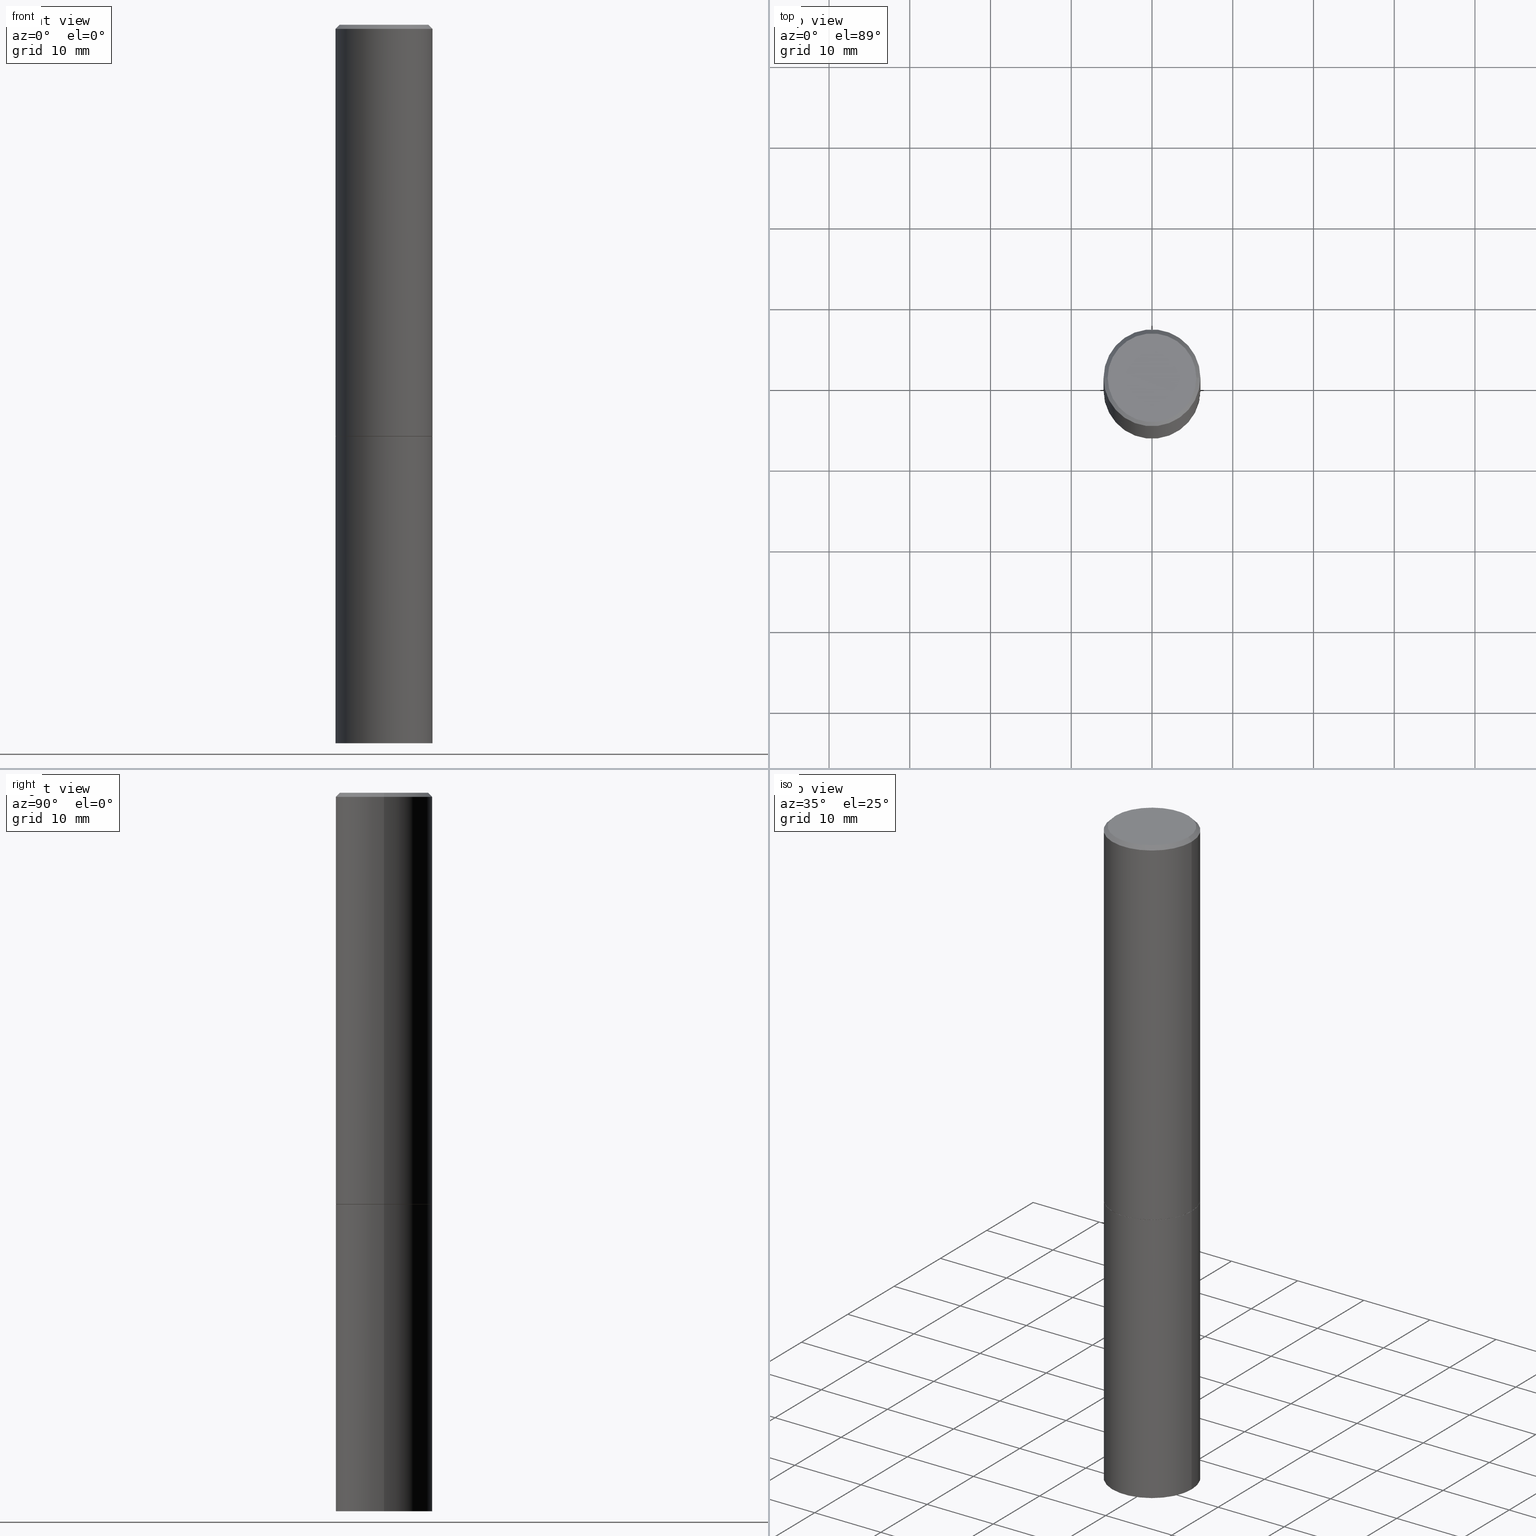
[diagram: canonical four-view strip — front | top / right | iso, engineering-drawing reading convention]
A machine part, canonical four-view strip (front | top / right | iso — engineering-drawing reading convention). The complete STEP part file that produces these views, byte-faithful:
ISO-10303-21;
HEADER;
FILE_DESCRIPTION (( 'STEP AP203' ),
    '1' );
FILE_NAME ('83111.STEP',
    '2024-03-01T00:17:55',
    ( '' ),
    ( '' ),
    'SwSTEP 2.0',
    'SolidWorks 2023',
    '' );
FILE_SCHEMA (( 'CONFIG_CONTROL_DESIGN' ));
ENDSEC;

DATA;
#1 = ORIENTED_EDGE ( 'NONE', *, *, #260, .F. ) ;
#2 = DATE_AND_TIME ( #257, #85 ) ;
#3 = VERTEX_POINT ( 'NONE', #239 ) ;
#4 = AXIS2_PLACEMENT_3D ( 'NONE', #35, #15, #122 ) ;
#5 = APPROVAL_PERSON_ORGANIZATION ( #126, #93, #319 ) ;
#6 = APPROVAL_STATUS ( 'not_yet_approved' ) ;
#7 = ORIENTED_EDGE ( 'NONE', *, *, #244, .F. ) ;
#8 = ORIENTED_EDGE ( 'NONE', *, *, #254, .F. ) ;
#9 = ADVANCED_FACE ( 'NONE', ( #265 ), #326, .F. ) ;
#10 = EDGE_LOOP ( 'NONE', ( #256, #140 ) ) ;
#11 = AXIS2_PLACEMENT_3D ( 'NONE', #24, #354, #187 ) ;
#12 = LOCAL_TIME ( 19, 17, 55.00000000000000000, #121 ) ;
#13 = FACE_OUTER_BOUND ( 'NONE', #191, .T. ) ;
#14 = ORIENTED_EDGE ( 'NONE', *, *, #254, .T. ) ;
#15 = DIRECTION ( 'NONE',  ( -2.445468806185136597E-29, 3.491481338843145583E-15, 1.000000000000000000 ) ) ;
#16 = CALENDAR_DATE ( 2024, 29, 2 ) ;
#17 = AXIS2_PLACEMENT_3D ( 'NONE', #76, #47, #213 ) ;
#18 = CARTESIAN_POINT ( 'NONE',  ( -0.2362000000000000210, -1.859965246918283512E-15, -2.006799999999999695 ) ) ;
#19 = DIRECTION ( 'NONE',  ( 1.000000000000000000, -6.982962677686267499E-15, 4.876217060660161841E-29 ) ) ;
#20 = APPROVAL ( #251, 'UNSPECIFIED' ) ;
#21 = CARTESIAN_POINT ( 'NONE',  ( 0.2161999999999997257, -1.586759460484350016E-15, 4.268512490111238857E-18 ) ) ;
#22 = VECTOR ( 'NONE', #243, 39.37007874015748854 ) ;
#23 = DIRECTION ( 'NONE',  ( 1.000000000000000000, -6.982962677686269077E-15, 0.000000000000000000 ) ) ;
#24 = CARTESIAN_POINT ( 'NONE',  ( 4.910012269058516525E-29, -7.010196232129267410E-15, -2.007800000000000029 ) ) ;
#25 = CARTESIAN_POINT ( 'NONE',  ( 0.000000000000000000, 0.000000000000000000, 0.000000000000000000 ) ) ;
#26 = VERTEX_POINT ( 'NONE', #94 ) ;
#27 = DATE_TIME_ROLE ( 'creation_date' ) ;
#28 = EDGE_LOOP ( 'NONE', ( #56, #83 ) ) ;
#29 = EDGE_CURVE ( 'NONE', #26, #112, #210, .T. ) ;
#30 = APPLICATION_PROTOCOL_DEFINITION ( 'international standard', 'config_control_design', 1994, #357 ) ;
#31 = ORIENTED_EDGE ( 'NONE', *, *, #61, .T. ) ;
#32 = DIMENSIONAL_EXPONENTS ( 1.000000000000000000, 0.000000000000000000, 0.000000000000000000, 0.000000000000000000, 0.000000000000000000, 0.000000000000000000, 0.000000000000000000 ) ;
#33 = CALENDAR_DATE ( 2024, 29, 2 ) ;
#34 = ADVANCED_FACE ( 'NONE', ( #90 ), #39, .T. ) ;
#35 = CARTESIAN_POINT ( 'NONE',  ( 4.910012269058516525E-29, -7.010196232129267410E-15, -2.007800000000000029 ) ) ;
#36 = DIRECTION ( 'NONE',  ( -1.000000000000000000, 6.982962677686266711E-15, 0.000000000000000000 ) ) ;
#37 = MANIFOLD_SOLID_BREP ( 'Body-Move/Copy2[2]', #147 ) ;
#38 = CARTESIAN_POINT ( 'NONE',  ( 4.890937612370280165E-31, -6.982962677686301470E-17, -0.02000000000000003164 ) ) ;
#39 = CONICAL_SURFACE ( 'NONE', #248, 0.2361999999999997157, 0.7853981633974472798 ) ;
#40 = CIRCLE ( 'NONE', #283, 0.2361999999999997157 ) ;
#41 = DIRECTION ( 'NONE',  ( -2.445468806185136877E-29, 3.491481338843145188E-15, 1.000000000000000000 ) ) ;
#42 = PRODUCT_RELATED_PRODUCT_CATEGORY ( 'detail', '', ( #222 ) ) ;
#43 = DIRECTION ( 'NONE',  ( 1.000000000000000000, -6.982962677686264344E-15, 0.000000000000000000 ) ) ;
#44 = CARTESIAN_POINT ( 'NONE',  ( -1.043851414335219820E-46, 1.490343170380447200E-32, 4.268512490100411279E-18 ) ) ;
#45 = VECTOR ( 'NONE', #273, 39.37007874015748143 ) ;
#46 = DIRECTION ( 'NONE',  ( 1.000000000000000000, -6.982962677686266711E-15, 4.876176775795936353E-29 ) ) ;
#47 = DIRECTION ( 'NONE',  ( -2.445468806185136597E-29, 3.491481338843145583E-15, 1.000000000000000000 ) ) ;
#48 = CARTESIAN_POINT ( 'NONE',  ( 0.2361999999999999933, -1.649375784469496131E-15, 1.151752954443000088E-29 ) ) ;
#49 = VECTOR ( 'NONE', #103, 39.37007874015748143 ) ;
#50 = CARTESIAN_POINT ( 'NONE',  ( 4.907566800252331482E-29, -7.006704750790423614E-15, -2.006799999999999695 ) ) ;
#51 = FACE_OUTER_BOUND ( 'NONE', #10, .T. ) ;
#52 = EDGE_LOOP ( 'NONE', ( #290, #143 ) ) ;
#53 = DATE_AND_TIME ( #59, #231 ) ;
#54 = CYLINDRICAL_SURFACE ( 'NONE', #96, 0.2361999999999998545 ) ;
#55 = AXIS2_PLACEMENT_3D ( 'NONE', #330, #215, #75 ) ;
#56 = ORIENTED_EDGE ( 'NONE', *, *, #123, .F. ) ;
#57 = ADVANCED_FACE ( 'NONE', ( #268 ), #351, .T. ) ;
#58 = PERSON_AND_ORGANIZATION ( #155, #195 ) ;
#59 = CALENDAR_DATE ( 2024, 29, 2 ) ;
#60 = ORIENTED_EDGE ( 'NONE', *, *, #302, .F. ) ;
#61 = EDGE_CURVE ( 'NONE', #262, #281, #176, .T. ) ;
#62 = CARTESIAN_POINT ( 'NONE',  ( 0.2361999999999997157, -1.690279253850496996E-15, -0.02000000000000003164 ) ) ;
#63 =( GEOMETRIC_REPRESENTATION_CONTEXT ( 3 ) GLOBAL_UNCERTAINTY_ASSIGNED_CONTEXT ( ( #106 ) ) GLOBAL_UNIT_ASSIGNED_CONTEXT ( ( #221, #193, #164 ) ) REPRESENTATION_CONTEXT ( 'NONE', 'WORKASPACE' ) );
#64 = CARTESIAN_POINT ( 'NONE',  ( 4.890937612370280165E-31, -6.982962677686301470E-17, -0.02000000000000003164 ) ) ;
#65 = FACE_OUTER_BOUND ( 'NONE', #309, .T. ) ;
#66 = EDGE_LOOP ( 'NONE', ( #229, #31, #137, #60 ) ) ;
#67 = CIRCLE ( 'NONE', #275, 0.2161999999999997257 ) ;
#68 = AXIS2_PLACEMENT_3D ( 'NONE', #329, #247, #46 ) ;
#69 = VERTEX_POINT ( 'NONE', #62 ) ;
#70 = DIRECTION ( 'NONE',  ( -2.445468806185136597E-29, 3.491481338843145583E-15, 1.000000000000000000 ) ) ;
#71 = DATE_AND_TIME ( #16, #253 ) ;
#72 = EDGE_CURVE ( 'NONE', #3, #232, #67, .T. ) ;
#73 = LINE ( 'NONE', #298, #49 ) ;
#74 = AXIS2_PLACEMENT_3D ( 'NONE', #183, #77, #356 ) ;
#75 = DIRECTION ( 'NONE',  ( 1.000000000000000000, -6.982962677686265133E-15, 0.000000000000000000 ) ) ;
#76 = CARTESIAN_POINT ( 'NONE',  ( 4.890937612370280165E-31, -6.982962677686301470E-17, -0.02000000000000003164 ) ) ;
#77 = DIRECTION ( 'NONE',  ( 2.438088387897960049E-29, -3.491481338843145188E-15, -1.000000000000000000 ) ) ;
#78 = CC_DESIGN_PERSON_AND_ORGANIZATION_ASSIGNMENT ( #99, #214, ( #336 ) ) ;
#79 = AXIS2_PLACEMENT_3D ( 'NONE', #104, #188, #303 ) ;
#80 = CARTESIAN_POINT ( 'NONE',  ( 0.000000000000000000, 0.000000000000000000, 0.000000000000000000 ) ) ;
#81 = EDGE_LOOP ( 'NONE', ( #197, #258, #149, #7 ) ) ;
#82 = ADVANCED_FACE ( 'NONE', ( #65 ), #313, .T. ) ;
#83 = ORIENTED_EDGE ( 'NONE', *, *, #348, .F. ) ;
#84 = DIRECTION ( 'NONE',  ( 1.000000000000000000, 0.000000000000000000, 0.000000000000000000 ) ) ;
#85 = LOCAL_TIME ( 19, 17, 55.00000000000000000, #166 ) ;
#86 = CARTESIAN_POINT ( 'NONE',  ( 0.000000000000000000, 0.000000000000000000, 0.000000000000000000 ) ) ;
#87 = APPROVAL_DATE_TIME ( #240, #170 ) ;
#88 = ORIENTED_EDGE ( 'NONE', *, *, #203, .T. ) ;
#89 = SECURITY_CLASSIFICATION_LEVEL ( 'unclassified' ) ;
#90 = FACE_OUTER_BOUND ( 'NONE', #81, .T. ) ;
#91 = VECTOR ( 'NONE', #156, 39.37007874015748143 ) ;
#92 = DIRECTION ( 'NONE',  ( -2.445468806185136877E-29, 3.491481338843145188E-15, 1.000000000000000000 ) ) ;
#93 = APPROVAL ( #6, 'UNSPECIFIED' ) ;
#94 = CARTESIAN_POINT ( 'NONE',  ( -0.2361999999999999933, -7.943696905785525451E-15, -3.503899999999999793 ) ) ;
#95 = CARTESIAN_POINT ( 'NONE',  ( -1.043851414335219820E-46, 1.490343170380447200E-32, 4.268512490100411279E-18 ) ) ;
#96 = AXIS2_PLACEMENT_3D ( 'NONE', #25, #280, #111 ) ;
#97 = DATE_TIME_ROLE ( 'classification_date' ) ;
#98 = DIRECTION ( 'NONE',  ( -2.445468806185136597E-29, 3.491481338843145583E-15, 1.000000000000000000 ) ) ;
#99 = PERSON_AND_ORGANIZATION ( #155, #195 ) ;
#100 = CARTESIAN_POINT ( 'NONE',  ( 4.890937612370280165E-31, -6.982962677686301470E-17, -0.02000000000000003164 ) ) ;
#101 = CYLINDRICAL_SURFACE ( 'NONE', #68, 0.2361999999999999933 ) ;
#102 = VECTOR ( 'NONE', #41, 39.37007874015748143 ) ;
#103 = DIRECTION ( 'NONE',  ( -2.445468806185136877E-29, 3.491481338843145188E-15, 1.000000000000000000 ) ) ;
#104 = CARTESIAN_POINT ( 'NONE',  ( 4.907566800252331482E-29, -7.006704750790423614E-15, -2.006799999999999695 ) ) ;
#105 = EDGE_CURVE ( 'NONE', #350, #279, #144, .T. ) ;
#106 = UNCERTAINTY_MEASURE_WITH_UNIT (LENGTH_MEASURE( 1.000000000000000082E-05 ), #221, 'distance_accuracy_value', 'NONE');
#107 = VECTOR ( 'NONE', #118, 39.37007874015748854 ) ;
#108 = DIRECTION ( 'NONE',  ( 1.000000000000000000, -6.982962677686266711E-15, 4.876176775795936353E-29 ) ) ;
#109 = ORIENTED_EDGE ( 'NONE', *, *, #260, .T. ) ;
#110 = ADVANCED_FACE ( 'NONE', ( #13 ), #115, .T. ) ;
#111 = DIRECTION ( 'NONE',  ( 1.000000000000000000, -6.982962677686266711E-15, 4.876176775795935793E-29 ) ) ;
#112 = VERTEX_POINT ( 'NONE', #347 ) ;
#113 = VERTEX_POINT ( 'NONE', #206 ) ;
#114 = PLANE ( 'NONE',  #241 ) ;
#115 = CONICAL_SURFACE ( 'NONE', #4, 0.2351999999999999924, 0.7853981633974141952 ) ;
#116 = ORIENTED_EDGE ( 'NONE', *, *, #295, .T. ) ;
#117 = DIRECTION ( 'NONE',  ( -1.000000000000000000, 6.982962677686265922E-15, -4.876176775795935793E-29 ) ) ;
#118 = DIRECTION ( 'NONE',  ( 0.7071067811865232589, -2.468850131082003836E-15, 0.7071067811865715536 ) ) ;
#119 = ADVANCED_FACE ( 'NONE', ( #323 ), #167, .T. ) ;
#120 = ORIENTED_EDGE ( 'NONE', *, *, #29, .F. ) ;
#121 = COORDINATED_UNIVERSAL_TIME_OFFSET ( 5, 0, .BEHIND. ) ;
#122 = DIRECTION ( 'NONE',  ( 1.000000000000000000, -6.982962677686264344E-15, 0.000000000000000000 ) ) ;
#123 = EDGE_CURVE ( 'NONE', #350, #113, #321, .T. ) ;
#124 = PERSON_AND_ORGANIZATION ( #155, #195 ) ;
#125 = CARTESIAN_POINT ( 'NONE',  ( -0.2351999999999999924, -5.338999717621511235E-15, -2.007800000000000029 ) ) ;
#126 = PERSON_AND_ORGANIZATION ( #155, #195 ) ;
#127 = FACE_OUTER_BOUND ( 'NONE', #349, .T. ) ;
#128 = CARTESIAN_POINT ( 'NONE',  ( 4.910012269058516525E-29, -7.010196232129267410E-15, -2.007800000000000029 ) ) ;
#129 = AXIS2_PLACEMENT_3D ( 'NONE', #44, #334, #19 ) ;
#130 = CC_DESIGN_DATE_AND_TIME_ASSIGNMENT ( #242, #97, ( #342 ) ) ;
#131 = CARTESIAN_POINT ( 'NONE',  ( 0.2361999999999997157, -1.690279253850496996E-15, -0.02000000000000003164 ) ) ;
#132 = APPLICATION_CONTEXT ( 'configuration controlled 3d designs of mechanical parts and assemblies' ) ;
#133 = CARTESIAN_POINT ( 'NONE',  ( 4.910012269058516525E-29, -7.010196232129267410E-15, -2.007800000000000029 ) ) ;
#134 = DIRECTION ( 'NONE',  ( 0.000000000000000000, 0.000000000000000000, 1.000000000000000000 ) ) ;
#135 = EDGE_CURVE ( 'NONE', #225, #112, #327, .T. ) ;
#136 = CARTESIAN_POINT ( 'NONE',  ( 0.2351999999999999924, -8.652589053921076343E-15, -2.007800000000000029 ) ) ;
#137 = ORIENTED_EDGE ( 'NONE', *, *, #282, .F. ) ;
#138 = EDGE_LOOP ( 'NONE', ( #109, #233, #345, #8 ) ) ;
#139 = LENGTH_MEASURE_WITH_UNIT ( LENGTH_MEASURE( 0.02539999999999999897 ), #305 );
#140 = ORIENTED_EDGE ( 'NONE', *, *, #291, .T. ) ;
#141 = CC_DESIGN_PERSON_AND_ORGANIZATION_ASSIGNMENT ( #58, #169, ( #222 ) ) ;
#142 = AXIS2_PLACEMENT_3D ( 'NONE', #133, #196, #366 ) ;
#143 = ORIENTED_EDGE ( 'NONE', *, *, #157, .T. ) ;
#144 = LINE ( 'NONE', #152, #107 ) ;
#145 = CARTESIAN_POINT ( 'NONE',  ( 4.910012269058516525E-29, -7.010196232129267410E-15, -2.007800000000000029 ) ) ;
#146 = ADVANCED_FACE ( 'NONE', ( #127 ), #101, .T. ) ;
#147 = CLOSED_SHELL ( 'NONE', ( #110, #307, #34, #119, #57, #82, #216, #9 ) ) ;
#148 = AXIS2_PLACEMENT_3D ( 'NONE', #86, #134, #84 ) ;
#149 = ORIENTED_EDGE ( 'NONE', *, *, #282, .T. ) ;
#150 = CC_DESIGN_APPROVAL ( #170, ( #336 ) ) ;
#151 = DIRECTION ( 'NONE',  ( -2.445468806185136597E-29, 3.491481338843145583E-15, 1.000000000000000000 ) ) ;
#152 = CARTESIAN_POINT ( 'NONE',  ( 0.2351999999999999924, -8.652589053921076343E-15, -2.007800000000000029 ) ) ;
#153 = PLANE ( 'NONE',  #74 ) ;
#154 = DIRECTION ( 'NONE',  ( 1.000000000000000000, -6.982962677686265133E-15, 0.000000000000000000 ) ) ;
#155 = PERSON ( 'UNSPECIFIED', 'UNSPECIFIED', 'UNSPECIFIED', ('UNSPECIFIED'), ('UNSPECIFIED'), ('UNSPECIFIED') ) ;
#156 = DIRECTION ( 'NONE',  ( -2.445468806185136877E-29, 3.491481338843145188E-15, 1.000000000000000000 ) ) ;
#157 = EDGE_CURVE ( 'NONE', #232, #3, #292, .T. ) ;
#158 = MANIFOLD_SOLID_BREP ( 'Body-Move/Copy2[1]', #311 ) ;
#159 = CARTESIAN_POINT ( 'NONE',  ( -0.2361999999999997157, 1.579546157692631255E-15, -0.02000000000000003164 ) ) ;
#160 = DESIGN_CONTEXT ( 'detailed design', #357, 'design' ) ;
#161 = AXIS2_PLACEMENT_3D ( 'NONE', #288, #236, #43 ) ;
#162 = APPROVAL_PERSON_ORGANIZATION ( #171, #170, #344 ) ;
#163 = LINE ( 'NONE', #159, #259 ) ;
#164 =( NAMED_UNIT ( * ) SI_UNIT ( $, .STERADIAN. ) SOLID_ANGLE_UNIT ( ) );
#165 = ORIENTED_EDGE ( 'NONE', *, *, #189, .F. ) ;
#166 = COORDINATED_UNIVERSAL_TIME_OFFSET ( 5, 0, .BEHIND. ) ;
#167 = CONICAL_SURFACE ( 'NONE', #276, 0.2361999999999997157, 0.7853981633974472798 ) ;
#168 = ORIENTED_EDGE ( 'NONE', *, *, #72, .F. ) ;
#169 = PERSON_AND_ORGANIZATION_ROLE ( 'design_owner' ) ;
#170 = APPROVAL ( #331, 'UNSPECIFIED' ) ;
#171 = PERSON_AND_ORGANIZATION ( #155, #195 ) ;
#172 = ORIENTED_EDGE ( 'NONE', *, *, #211, .F. ) ;
#173 = CIRCLE ( 'NONE', #353, 0.2361999999999999933 ) ;
#174 = DIRECTION ( 'NONE',  ( 1.000000000000000000, -6.982962677686267499E-15, 4.876217060660161841E-29 ) ) ;
#175 = ADVANCED_FACE ( 'NONE', ( #250 ), #153, .T. ) ;
#176 = LINE ( 'NONE', #320, #178 ) ;
#177 = DIRECTION ( 'NONE',  ( 1.000000000000000000, -6.982962677686264344E-15, 0.000000000000000000 ) ) ;
#178 = VECTOR ( 'NONE', #92, 39.37007874015748143 ) ;
#179 = AXIS2_PLACEMENT_3D ( 'NONE', #145, #263, #177 ) ;
#180 = EDGE_LOOP ( 'NONE', ( #1, #165 ) ) ;
#181 = CARTESIAN_POINT ( 'NONE',  ( 0.000000000000000000, 0.000000000000000000, 0.000000000000000000 ) ) ;
#182 = FACE_OUTER_BOUND ( 'NONE', #28, .T. ) ;
#183 = CARTESIAN_POINT ( 'NONE',  ( 1.649375784469581525E-15, 0.2361999999999877808, -3.503900000000000681 ) ) ;
#184 = APPROVAL_PERSON_ORGANIZATION ( #363, #20, #364 ) ;
#185 = COORDINATED_UNIVERSAL_TIME_OFFSET ( 5, 0, .BEHIND. ) ;
#186 = CARTESIAN_POINT ( 'NONE',  ( -0.2361999999999997157, 1.579546157692631255E-15, -0.02000000000000003164 ) ) ;
#187 = DIRECTION ( 'NONE',  ( 1.000000000000000000, -6.982962677686265922E-15, 4.876176775795935793E-29 ) ) ;
#188 = DIRECTION ( 'NONE',  ( -2.445468806185136597E-29, 3.491481338843145583E-15, 1.000000000000000000 ) ) ;
#189 = EDGE_CURVE ( 'NONE', #26, #317, #205, .T. ) ;
#190 = FACE_OUTER_BOUND ( 'NONE', #138, .T. ) ;
#191 = EDGE_LOOP ( 'NONE', ( #235, #116, #315, #266 ) ) ;
#192 = ORIENTED_EDGE ( 'NONE', *, *, #234, .T. ) ;
#193 =( NAMED_UNIT ( * ) PLANE_ANGLE_UNIT ( ) SI_UNIT ( $, .RADIAN. ) );
#194 = ORIENTED_EDGE ( 'NONE', *, *, #348, .T. ) ;
#195 = ORGANIZATION ( 'UNSPECIFIED', 'UNSPECIFIED', '' ) ;
#196 = DIRECTION ( 'NONE',  ( -2.445468806185136597E-29, 3.491481338843145583E-15, 1.000000000000000000 ) ) ;
#197 = ORIENTED_EDGE ( 'NONE', *, *, #157, .F. ) ;
#198 = PRODUCT_DEFINITION ( 'UNKNOWN', '', #336, #160 ) ;
#199 = APPROVAL_DATE_TIME ( #2, #20 ) ;
#200 = ORIENTED_EDGE ( 'NONE', *, *, #291, .F. ) ;
#201 = PERSON_AND_ORGANIZATION ( #155, #195 ) ;
#202 = DIRECTION ( 'NONE',  ( 2.438088387897960049E-29, -3.491481338843145188E-15, -1.000000000000000000 ) ) ;
#203 = EDGE_CURVE ( 'NONE', #281, #69, #40, .T. ) ;
#204 = CALENDAR_DATE ( 2024, 29, 2 ) ;
#205 = CIRCLE ( 'NONE', #223, 0.2361999999999999933 ) ;
#206 = CARTESIAN_POINT ( 'NONE',  ( -0.2351999999999999924, -5.333701263273288833E-15, -2.007800000000000029 ) ) ;
#207 = DIRECTION ( 'NONE',  ( -2.445468806185136597E-29, 3.491481338843145583E-15, 1.000000000000000000 ) ) ;
#208 = DIRECTION ( 'NONE',  ( 1.000000000000000000, -6.982962677686266711E-15, 4.876176775795935793E-29 ) ) ;
#209 = CIRCLE ( 'NONE', #55, 0.2361999999999999933 ) ;
#210 = LINE ( 'NONE', #267, #102 ) ;
#211 = EDGE_CURVE ( 'NONE', #232, #69, #217, .T. ) ;
#212 = SHAPE_DEFINITION_REPRESENTATION ( #340, #346 ) ;
#213 = DIRECTION ( 'NONE',  ( 1.000000000000000000, -6.982962677686266711E-15, 0.000000000000000000 ) ) ;
#214 = PERSON_AND_ORGANIZATION_ROLE ( 'design_supplier' ) ;
#215 = DIRECTION ( 'NONE',  ( -2.445468806185136597E-29, 3.491481338843145583E-15, 1.000000000000000000 ) ) ;
#216 = ADVANCED_FACE ( 'NONE', ( #182 ), #362, .F. ) ;
#217 = LINE ( 'NONE', #131, #45 ) ;
#218 = AXIS2_PLACEMENT_3D ( 'NONE', #50, #98, #270 ) ;
#219 = DIRECTION ( 'NONE',  ( -2.445468806185136597E-29, 3.491481338843145583E-15, 1.000000000000000000 ) ) ;
#220 = CARTESIAN_POINT ( 'NONE',  ( 4.910012269058516525E-29, -7.010196232129267410E-15, -2.007800000000000029 ) ) ;
#221 =( CONVERSION_BASED_UNIT ( 'INCH', #139 ) LENGTH_UNIT ( ) NAMED_UNIT ( #32 ) );
#222 = PRODUCT ( '83111', '83111', '', ( #278 ) ) ;
#223 = AXIS2_PLACEMENT_3D ( 'NONE', #296, #219, #154 ) ;
#224 = PERSON_AND_ORGANIZATION ( #155, #195 ) ;
#225 = VERTEX_POINT ( 'NONE', #332 ) ;
#226 = DIRECTION ( 'NONE',  ( -1.000000000000000000, 6.982962677686265922E-15, -4.876176775795935793E-29 ) ) ;
#227 = ORIENTED_EDGE ( 'NONE', *, *, #203, .F. ) ;
#228 = CC_DESIGN_PERSON_AND_ORGANIZATION_ASSIGNMENT ( #124, #355, ( #336 ) ) ;
#229 = ORIENTED_EDGE ( 'NONE', *, *, #238, .T. ) ;
#230 = AXIS2_PLACEMENT_3D ( 'NONE', #181, #151, #208 ) ;
#231 = LOCAL_TIME ( 19, 17, 55.00000000000000000, #308 ) ;
#232 = VERTEX_POINT ( 'NONE', #21 ) ;
#233 = ORIENTED_EDGE ( 'NONE', *, *, #29, .T. ) ;
#234 = EDGE_CURVE ( 'NONE', #262, #279, #252, .T. ) ;
#235 = ORIENTED_EDGE ( 'NONE', *, *, #123, .T. ) ;
#236 = DIRECTION ( 'NONE',  ( -2.445468806185136597E-29, 3.491481338843145583E-15, 1.000000000000000000 ) ) ;
#237 = ORIENTED_EDGE ( 'NONE', *, *, #302, .T. ) ;
#238 = EDGE_CURVE ( 'NONE', #279, #262, #287, .T. ) ;
#239 = CARTESIAN_POINT ( 'NONE',  ( -0.2161999999999997257, 1.544631344304200197E-15, 4.268512490089730842E-18 ) ) ;
#240 = DATE_AND_TIME ( #33, #12 ) ;
#241 = AXIS2_PLACEMENT_3D ( 'NONE', #335, #310, #226 ) ;
#242 = DATE_AND_TIME ( #204, #299 ) ;
#243 = DIRECTION ( 'NONE',  ( -0.7071067811865232589, 7.493145998870265808E-15, 0.7071067811865715536 ) ) ;
#244 = EDGE_CURVE ( 'NONE', #3, #281, #163, .T. ) ;
#245 = PERSON_AND_ORGANIZATION_ROLE ( 'classification_officer' ) ;
#246 = DIRECTION ( 'NONE',  ( 1.000000000000000000, -6.982962677686266711E-15, 0.000000000000000000 ) ) ;
#247 = DIRECTION ( 'NONE',  ( -2.445468806185136597E-29, 3.491481338843145583E-15, 1.000000000000000000 ) ) ;
#248 = AXIS2_PLACEMENT_3D ( 'NONE', #38, #325, #328 ) ;
#249 = CIRCLE ( 'NONE', #17, 0.2361999999999997157 ) ;
#250 = FACE_OUTER_BOUND ( 'NONE', #180, .T. ) ;
#251 = APPROVAL_STATUS ( 'not_yet_approved' ) ;
#252 = CIRCLE ( 'NONE', #79, 0.2361999999999999933 ) ;
#253 = LOCAL_TIME ( 19, 17, 55.00000000000000000, #261 ) ;
#254 = EDGE_CURVE ( 'NONE', #317, #225, #272, .T. ) ;
#255 = APPLICATION_PROTOCOL_DEFINITION ( 'international standard', 'config_control_design', 1994, #132 ) ;
#256 = ORIENTED_EDGE ( 'NONE', *, *, #135, .T. ) ;
#257 = CALENDAR_DATE ( 2024, 29, 2 ) ;
#258 = ORIENTED_EDGE ( 'NONE', *, *, #211, .T. ) ;
#259 = VECTOR ( 'NONE', #333, 39.37007874015748143 ) ;
#260 = EDGE_CURVE ( 'NONE', #317, #26, #209, .T. ) ;
#261 = COORDINATED_UNIVERSAL_TIME_OFFSET ( 5, 0, .BEHIND. ) ;
#262 = VERTEX_POINT ( 'NONE', #18 ) ;
#263 = DIRECTION ( 'NONE',  ( -2.445468806185136597E-29, 3.491481338843145583E-15, 1.000000000000000000 ) ) ;
#264 = AXIS2_PLACEMENT_3D ( 'NONE', #294, #202, #117 ) ;
#265 = FACE_OUTER_BOUND ( 'NONE', #52, .T. ) ;
#266 = ORIENTED_EDGE ( 'NONE', *, *, #105, .F. ) ;
#267 = CARTESIAN_POINT ( 'NONE',  ( -0.2361999999999999933, 1.678301941865356591E-15, -1.161852468318208757E-29 ) ) ;
#268 = FACE_OUTER_BOUND ( 'NONE', #338, .T. ) ;
#269 = AXIS2_PLACEMENT_3D ( 'NONE', #80, #339, #108 ) ;
#270 = DIRECTION ( 'NONE',  ( 1.000000000000000000, -6.982962677686265133E-15, 0.000000000000000000 ) ) ;
#271 = CC_DESIGN_DATE_AND_TIME_ASSIGNMENT ( #53, #27, ( #198 ) ) ;
#272 = LINE ( 'NONE', #48, #91 ) ;
#273 = DIRECTION ( 'NONE',  ( 0.7071067811865467956, -7.319954787623254468E-15, -0.7071067811865482389 ) ) ;
#274 = DIRECTION ( 'NONE',  ( -2.445468806185136597E-29, 3.491481338843145583E-15, 1.000000000000000000 ) ) ;
#275 = AXIS2_PLACEMENT_3D ( 'NONE', #95, #207, #174 ) ;
#276 = AXIS2_PLACEMENT_3D ( 'NONE', #64, #289, #36 ) ;
#277 = LINE ( 'NONE', #125, #22 ) ;
#278 = MECHANICAL_CONTEXT ( 'NONE', #132, 'mechanical' ) ;
#279 = VERTEX_POINT ( 'NONE', #300 ) ;
#280 = DIRECTION ( 'NONE',  ( -2.445468806185136597E-29, 3.491481338843145583E-15, 1.000000000000000000 ) ) ;
#281 = VERTEX_POINT ( 'NONE', #186 ) ;
#282 = EDGE_CURVE ( 'NONE', #69, #281, #249, .T. ) ;
#283 = AXIS2_PLACEMENT_3D ( 'NONE', #100, #358, #246 ) ;
#284 = CYLINDRICAL_SURFACE ( 'NONE', #269, 0.2361999999999999933 ) ;
#285 = ORIENTED_EDGE ( 'NONE', *, *, #244, .T. ) ;
#286 = ORIENTED_EDGE ( 'NONE', *, *, #61, .F. ) ;
#287 = CIRCLE ( 'NONE', #218, 0.2361999999999999933 ) ;
#288 = CARTESIAN_POINT ( 'NONE',  ( 4.910012269058516525E-29, -7.010196232129267410E-15, -2.007800000000000029 ) ) ;
#289 = DIRECTION ( 'NONE',  ( 2.445468806185136597E-29, -3.491481338843145583E-15, -1.000000000000000000 ) ) ;
#290 = ORIENTED_EDGE ( 'NONE', *, *, #72, .T. ) ;
#291 = EDGE_CURVE ( 'NONE', #112, #225, #173, .T. ) ;
#292 = CIRCLE ( 'NONE', #129, 0.2161999999999997257 ) ;
#293 = ORIENTED_EDGE ( 'NONE', *, *, #189, .T. ) ;
#294 = CARTESIAN_POINT ( 'NONE',  ( 1.509716530915768746E-15, 0.2161999999999997257, -7.527240092128370190E-16 ) ) ;
#295 = EDGE_CURVE ( 'NONE', #113, #262, #277, .T. ) ;
#296 = CARTESIAN_POINT ( 'NONE',  ( 8.568678149992099474E-29, -1.223380146317249786E-14, -3.503899999999999793 ) ) ;
#297 = CIRCLE ( 'NONE', #142, 0.2351999999999999924 ) ;
#298 = CARTESIAN_POINT ( 'NONE',  ( 0.2361999999999998545, -1.649375784469495145E-15, 1.151752954442999387E-29 ) ) ;
#299 = LOCAL_TIME ( 19, 17, 55.00000000000000000, #185 ) ;
#300 = CARTESIAN_POINT ( 'NONE',  ( 0.2361999999999999933, -8.656080535259919350E-15, -2.006799999999999695 ) ) ;
#301 = FACE_OUTER_BOUND ( 'NONE', #66, .T. ) ;
#302 = EDGE_CURVE ( 'NONE', #279, #69, #73, .T. ) ;
#303 = DIRECTION ( 'NONE',  ( 1.000000000000000000, -6.982962677686265133E-15, 0.000000000000000000 ) ) ;
#304 = CC_DESIGN_SECURITY_CLASSIFICATION ( #342, ( #336 ) ) ;
#305 =( LENGTH_UNIT ( ) NAMED_UNIT ( * ) SI_UNIT ( $, .METRE. ) );
#306 = EDGE_LOOP ( 'NONE', ( #172, #168, #285, #88 ) ) ;
#307 = ADVANCED_FACE ( 'NONE', ( #301 ), #54, .T. ) ;
#308 = COORDINATED_UNIVERSAL_TIME_OFFSET ( 5, 0, .BEHIND. ) ;
#309 = EDGE_LOOP ( 'NONE', ( #312, #194, #365, #343 ) ) ;
#310 = DIRECTION ( 'NONE',  ( 2.438088387897960049E-29, -3.491481338843145188E-15, -1.000000000000000000 ) ) ;
#311 = CLOSED_SHELL ( 'NONE', ( #337, #175, #324, #146 ) ) ;
#312 = ORIENTED_EDGE ( 'NONE', *, *, #295, .F. ) ;
#313 = CONICAL_SURFACE ( 'NONE', #161, 0.2351999999999999924, 0.7853981633974141952 ) ;
#314 = CARTESIAN_POINT ( 'NONE',  ( 0.2361999999999999933, -1.388317724764199281E-14, -3.503899999999999793 ) ) ;
#315 = ORIENTED_EDGE ( 'NONE', *, *, #238, .F. ) ;
#316 = PERSON_AND_ORGANIZATION_ROLE ( 'creator' ) ;
#317 = VERTEX_POINT ( 'NONE', #314 ) ;
#318 = CC_DESIGN_PERSON_AND_ORGANIZATION_ASSIGNMENT ( #201, #245, ( #342 ) ) ;
#319 = APPROVAL_ROLE ( '' ) ;
#320 = CARTESIAN_POINT ( 'NONE',  ( -0.2361999999999998545, 1.678301941865355605E-15, -1.161852468318208056E-29 ) ) ;
#321 = CIRCLE ( 'NONE', #179, 0.2351999999999999924 ) ;
#322 = CC_DESIGN_APPROVAL ( #93, ( #342 ) ) ;
#323 = FACE_OUTER_BOUND ( 'NONE', #306, .T. ) ;
#324 = ADVANCED_FACE ( 'NONE', ( #51 ), #114, .F. ) ;
#325 = DIRECTION ( 'NONE',  ( 2.445468806185136597E-29, -3.491481338843145583E-15, -1.000000000000000000 ) ) ;
#326 = PLANE ( 'NONE',  #264 ) ;
#327 = CIRCLE ( 'NONE', #360, 0.2361999999999999933 ) ;
#328 = DIRECTION ( 'NONE',  ( -1.000000000000000000, 6.982962677686266711E-15, 0.000000000000000000 ) ) ;
#329 = CARTESIAN_POINT ( 'NONE',  ( 0.000000000000000000, 0.000000000000000000, 0.000000000000000000 ) ) ;
#330 = CARTESIAN_POINT ( 'NONE',  ( 8.568678149992099474E-29, -1.223380146317249786E-14, -3.503899999999999793 ) ) ;
#331 = APPROVAL_STATUS ( 'not_yet_approved' ) ;
#332 = CARTESIAN_POINT ( 'NONE',  ( 0.2361999999999999933, -8.659572016598763935E-15, -2.007800000000000029 ) ) ;
#333 = DIRECTION ( 'NONE',  ( -0.7071067811865467956, 2.468850131082249172E-15, -0.7071067811865482389 ) ) ;
#334 = DIRECTION ( 'NONE',  ( -2.445468806185136597E-29, 3.491481338843145583E-15, 1.000000000000000000 ) ) ;
#335 = CARTESIAN_POINT ( 'NONE',  ( 1.649375784469545040E-15, 0.2361999999999929989, -2.007800000000000473 ) ) ;
#336 = PRODUCT_DEFINITION_FORMATION_WITH_SPECIFIED_SOURCE ( 'ANY', '', #222, .NOT_KNOWN. ) ;
#337 = ADVANCED_FACE ( 'NONE', ( #190 ), #284, .T. ) ;
#338 = EDGE_LOOP ( 'NONE', ( #286, #192, #237, #227 ) ) ;
#339 = DIRECTION ( 'NONE',  ( -2.445468806185136597E-29, 3.491481338843145583E-15, 1.000000000000000000 ) ) ;
#340 = PRODUCT_DEFINITION_SHAPE ( 'NONE', 'NONE',  #198 ) ;
#341 = CC_DESIGN_APPROVAL ( #20, ( #198 ) ) ;
#342 = SECURITY_CLASSIFICATION ( '', '', #89 ) ;
#343 = ORIENTED_EDGE ( 'NONE', *, *, #234, .F. ) ;
#344 = APPROVAL_ROLE ( '' ) ;
#345 = ORIENTED_EDGE ( 'NONE', *, *, #135, .F. ) ;
#346 = ADVANCED_BREP_SHAPE_REPRESENTATION ( '83111', ( #158, #37, #148 ), #63 ) ;
#347 = CARTESIAN_POINT ( 'NONE',  ( -0.2361999999999999933, -7.943696905785525451E-15, -2.007800000000000029 ) ) ;
#348 = EDGE_CURVE ( 'NONE', #113, #350, #297, .T. ) ;
#349 = EDGE_LOOP ( 'NONE', ( #120, #293, #14, #200 ) ) ;
#350 = VERTEX_POINT ( 'NONE', #136 ) ;
#351 = CYLINDRICAL_SURFACE ( 'NONE', #230, 0.2361999999999998545 ) ;
#352 = APPROVAL_DATE_TIME ( #71, #93 ) ;
#353 = AXIS2_PLACEMENT_3D ( 'NONE', #128, #70, #361 ) ;
#354 = DIRECTION ( 'NONE',  ( -2.438088387897960049E-29, 3.491481338843145188E-15, 1.000000000000000000 ) ) ;
#355 = PERSON_AND_ORGANIZATION_ROLE ( 'creator' ) ;
#356 = DIRECTION ( 'NONE',  ( -1.000000000000000000, 6.982962677686265922E-15, -4.876176775795935793E-29 ) ) ;
#357 = APPLICATION_CONTEXT ( 'configuration controlled 3d designs of mechanical parts and assemblies' ) ;
#358 = DIRECTION ( 'NONE',  ( -2.445468806185136597E-29, 3.491481338843145583E-15, 1.000000000000000000 ) ) ;
#359 = CC_DESIGN_PERSON_AND_ORGANIZATION_ASSIGNMENT ( #224, #316, ( #198 ) ) ;
#360 = AXIS2_PLACEMENT_3D ( 'NONE', #220, #274, #23 ) ;
#361 = DIRECTION ( 'NONE',  ( 1.000000000000000000, -6.982962677686269077E-15, 0.000000000000000000 ) ) ;
#362 = PLANE ( 'NONE',  #11 ) ;
#363 = PERSON_AND_ORGANIZATION ( #155, #195 ) ;
#364 = APPROVAL_ROLE ( '' ) ;
#365 = ORIENTED_EDGE ( 'NONE', *, *, #105, .T. ) ;
#366 = DIRECTION ( 'NONE',  ( 1.000000000000000000, -6.982962677686264344E-15, 0.000000000000000000 ) ) ;
ENDSEC;
END-ISO-10303-21;
